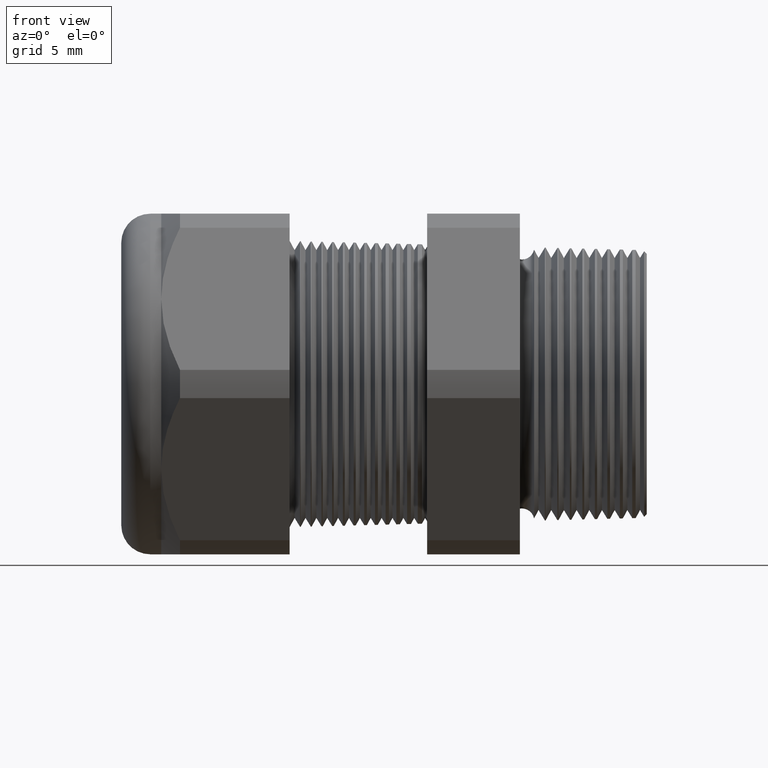
[diagram: clean part render]
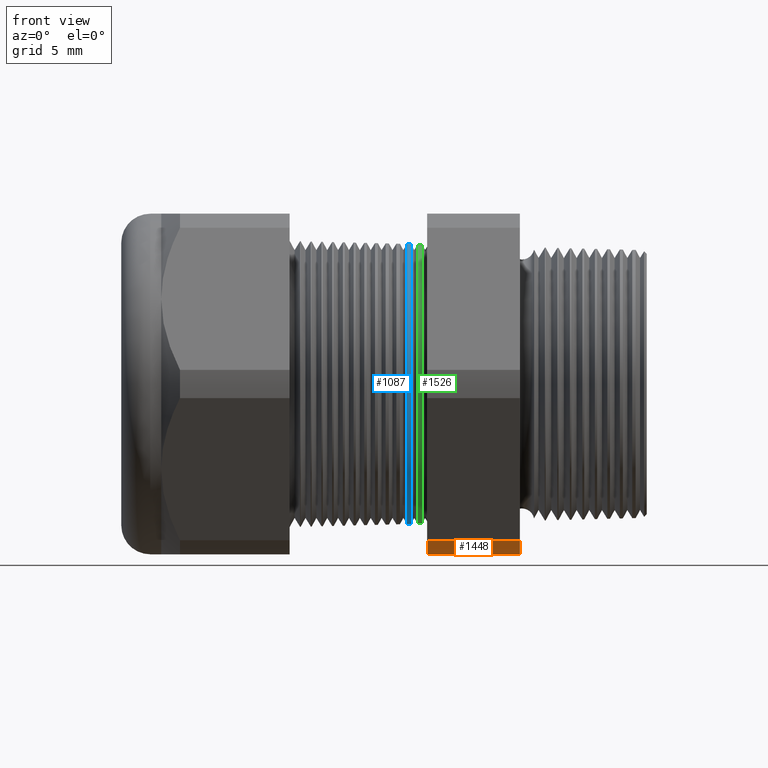
[diagram: same view with three faces highlighted in distinct colors, each labeled with its STEP entity id]
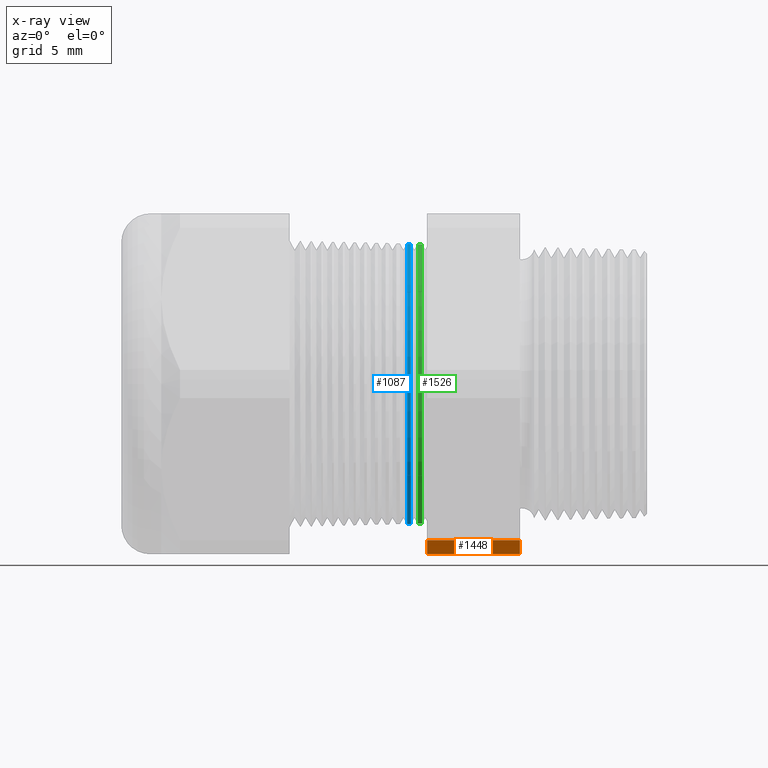
[diagram: x-ray of the same camera — body ghosted, the three highlighted faces saturated]
A machine part, front view with three faces highlighted in distinct colors.
The next image is the same camera in x-ray (body ghosted, the three faces saturated) — at least one of them is partly hidden behind the body in this view.
Their STEP definitions:

[orange] entity #1448 — the highlighted cylindrical surface (partial cylindrical patch) has radius 13.2512 mm, axis along (-1, 0, 0).
#1303 = EDGE_CURVE ( 'NONE', #1382, #1304, #4426, .T. ) ;
#1304 = VERTEX_POINT ( 'NONE', #4421 ) ;
#1382 = VERTEX_POINT ( 'NONE', #4538 ) ;
#1388 = EDGE_CURVE ( 'NONE', #1304, #1389, #3544, .T. ) ;
#1389 = VERTEX_POINT ( 'NONE', #4598 ) ;
#1392 = EDGE_LOOP ( 'NONE', ( #1449, #1450, #1451, #1454 ) ) ;
#1448 = ADVANCED_FACE ( 'NONE', ( #4686 ), #4685, .T. ) ;
#1449 = ORIENTED_EDGE ( 'NONE', *, *, #1388, .F. ) ;
#1450 = ORIENTED_EDGE ( 'NONE', *, *, #1303, .F. ) ;
#1451 = ORIENTED_EDGE ( 'NONE', *, *, #1452, .T. ) ;
#1452 = EDGE_CURVE ( 'NONE', #1382, #1453, #4684, .T. ) ;
#1453 = VERTEX_POINT ( 'NONE', #4676 ) ;
#1454 = ORIENTED_EDGE ( 'NONE', *, *, #1455, .F. ) ;
#1455 = EDGE_CURVE ( 'NONE', #1389, #1453, #4675, .T. ) ;
#3544 = LINE ( 'NONE', #3797, #3796 ) ;
#3796 = VECTOR ( 'NONE', #4292, 39.37007874015748100 ) ;
#3797 = CARTESIAN_POINT ( 'NONE',  ( 0.04000000000000011900, -0.2264307620443830900, -0.4700000000000000300 ) ) ;
#4292 = DIRECTION ( 'NONE',  ( -1.000000000000000000, 0.0000000000000000000, 0.0000000000000000000 ) ) ;
#4421 = CARTESIAN_POINT ( 'NONE',  ( -0.3100000000000000000, -0.2264307620443830900, -0.4700000000000000300 ) ) ;
#4422 = DIRECTION ( 'NONE',  ( 0.0000000000000000000, 0.0000000000000000000, -1.000000000000000000 ) ) ;
#4423 = DIRECTION ( 'NONE',  ( 1.000000000000000000, 0.0000000000000000000, 0.0000000000000000000 ) ) ;
#4424 = CARTESIAN_POINT ( 'NONE',  ( -0.3100000000000000000, 0.0000000000000000000, 0.0000000000000000000 ) ) ;
#4425 = AXIS2_PLACEMENT_3D ( 'NONE', #4424, #4423, #4422 ) ;
#4426 = CIRCLE ( 'NONE', #4425, 0.5217000000000000500 ) ;
#4538 = CARTESIAN_POINT ( 'NONE',  ( -0.3100000000000000000, -0.2938165587564942600, -0.4310947921287053300 ) ) ;
#4598 = CARTESIAN_POINT ( 'NONE',  ( -0.5659055118110235500, -0.2264307620443830900, -0.4700000000000000300 ) ) ;
#4671 = DIRECTION ( 'NONE',  ( 0.0000000000000000000, 0.0000000000000000000, 1.000000000000000000 ) ) ;
#4672 = DIRECTION ( 'NONE',  ( -1.000000000000000000, 0.0000000000000000000, 0.0000000000000000000 ) ) ;
#4673 = CARTESIAN_POINT ( 'NONE',  ( -0.5659055118110235500, 0.0000000000000000000, 0.0000000000000000000 ) ) ;
#4674 = AXIS2_PLACEMENT_3D ( 'NONE', #4673, #4672, #4671 ) ;
#4675 = CIRCLE ( 'NONE', #4674, 0.5217000000000000500 ) ;
#4676 = CARTESIAN_POINT ( 'NONE',  ( -0.5659055118110235500, -0.2938165587564942600, -0.4310947921287053300 ) ) ;
#4677 = DIRECTION ( 'NONE',  ( -1.000000000000000000, 0.0000000000000000000, 0.0000000000000000000 ) ) ;
#4678 = VECTOR ( 'NONE', #4677, 39.37007874015748100 ) ;
#4679 = CARTESIAN_POINT ( 'NONE',  ( 0.04000000000000011900, -0.2938165587564942600, -0.4310947921287053300 ) ) ;
#4680 = DIRECTION ( 'NONE',  ( 0.0000000000000000000, 0.0000000000000000000, 1.000000000000000000 ) ) ;
#4681 = DIRECTION ( 'NONE',  ( -1.000000000000000000, 0.0000000000000000000, 0.0000000000000000000 ) ) ;
#4682 = CARTESIAN_POINT ( 'NONE',  ( 0.04000000000000011900, 0.0000000000000000000, 0.0000000000000000000 ) ) ;
#4683 = AXIS2_PLACEMENT_3D ( 'NONE', #4682, #4681, #4680 ) ;
#4684 = LINE ( 'NONE', #4679, #4678 ) ;
#4685 = CYLINDRICAL_SURFACE ( 'NONE', #4683, 0.5217000000000000500 ) ;
#4686 = FACE_OUTER_BOUND ( 'NONE', #1392, .T. ) ;

[blue] entity #1087 — the highlighted conical surface has half-angle 1.5 deg.
#18 = EDGE_CURVE ( 'NONE', #855, #1015, #1942, .T. ) ;
#29 = EDGE_CURVE ( 'NONE', #934, #1018, #1924, .T. ) ;
#855 = VERTEX_POINT ( 'NONE', #3498 ) ;
#934 = VERTEX_POINT ( 'NONE', #3661 ) ;
#1015 = VERTEX_POINT ( 'NONE', #3820 ) ;
#1018 = VERTEX_POINT ( 'NONE', #3814 ) ;
#1068 = ORIENTED_EDGE ( 'NONE', *, *, #1069, .F. ) ;
#1069 = EDGE_CURVE ( 'NONE', #1018, #1015, #3904, .T. ) ;
#1087 = ADVANCED_FACE ( 'NONE', ( #3930 ), #3929, .T. ) ;
#1088 = EDGE_LOOP ( 'NONE', ( #1089, #1090, #1092, #1068 ) ) ;
#1089 = ORIENTED_EDGE ( 'NONE', *, *, #29, .F. ) ;
#1090 = ORIENTED_EDGE ( 'NONE', *, *, #1091, .F. ) ;
#1091 = EDGE_CURVE ( 'NONE', #855, #934, #3923, .T. ) ;
#1092 = ORIENTED_EDGE ( 'NONE', *, *, #18, .T. ) ;
#1917 = DIRECTION ( 'NONE',  ( -0.9996573249755573700, 3.205751595667397300E-018, -0.02617694830786612700 ) ) ;
#1918 = CARTESIAN_POINT ( 'NONE',  ( -0.5659055118110234400, 4.715646042257034900E-017, -0.3850617211052404000 ) ) ;
#1924 = LINE ( 'NONE', #1918, #1979 ) ;
#1934 = DIRECTION ( 'NONE',  ( -0.9996573249755573700, 0.0000000000000000000, 0.02617694830786612700 ) ) ;
#1935 = VECTOR ( 'NONE', #1934, 39.37007874015748100 ) ;
#1936 = CARTESIAN_POINT ( 'NONE',  ( -0.5659055118110234400, 0.0000000000000000000, 0.3850617211052404000 ) ) ;
#1942 = LINE ( 'NONE', #1936, #1935 ) ;
#1979 = VECTOR ( 'NONE', #1917, 39.37007874015748100 ) ;
#3498 = CARTESIAN_POINT ( 'NONE',  ( -0.6106735281914870100, 0.0000000000000000000, 0.3862340128709869100 ) ) ;
#3661 = CARTESIAN_POINT ( 'NONE',  ( -0.6106735281914870100, 4.731708507153197700E-017, -0.3862340128709869100 ) ) ;
#3814 = CARTESIAN_POINT ( 'NONE',  ( -0.6213134461331300000, 4.733414538463479300E-017, -0.3865126289277093800 ) ) ;
#3820 = CARTESIAN_POINT ( 'NONE',  ( -0.6213134461331300000, 0.0000000000000000000, 0.3865126289277093800 ) ) ;
#3900 = DIRECTION ( 'NONE',  ( 0.0000000000000000000, 0.0000000000000000000, -1.000000000000000000 ) ) ;
#3901 = DIRECTION ( 'NONE',  ( -1.000000000000000000, 0.0000000000000000000, 0.0000000000000000000 ) ) ;
#3902 = CARTESIAN_POINT ( 'NONE',  ( -0.6213134461331300000, 0.0000000000000000000, 0.0000000000000000000 ) ) ;
#3903 = AXIS2_PLACEMENT_3D ( 'NONE', #3902, #3901, #3900 ) ;
#3904 = CIRCLE ( 'NONE', #3903, 0.3865126289277093800 ) ;
#3920 = DIRECTION ( 'NONE',  ( 0.0000000000000000000, 0.0000000000000000000, 1.000000000000000000 ) ) ;
#3921 = DIRECTION ( 'NONE',  ( 1.000000000000000000, 0.0000000000000000000, 0.0000000000000000000 ) ) ;
#3922 = AXIS2_PLACEMENT_3D ( 'NONE', #3928, #3921, #3920 ) ;
#3923 = CIRCLE ( 'NONE', #3922, 0.3862340128709869100 ) ;
#3924 = DIRECTION ( 'NONE',  ( 0.0000000000000000000, 0.0000000000000000000, 1.000000000000000000 ) ) ;
#3925 = DIRECTION ( 'NONE',  ( -1.000000000000000000, 0.0000000000000000000, 0.0000000000000000000 ) ) ;
#3926 = CARTESIAN_POINT ( 'NONE',  ( -0.5659055118110234400, 0.0000000000000000000, 0.0000000000000000000 ) ) ;
#3927 = AXIS2_PLACEMENT_3D ( 'NONE', #3926, #3925, #3924 ) ;
#3928 = CARTESIAN_POINT ( 'NONE',  ( -0.6106735281914870100, 0.0000000000000000000, 0.0000000000000000000 ) ) ;
#3929 = CONICAL_SURFACE ( 'NONE', #3927, 0.3850617211052404000, 0.02617993877990791600 ) ;
#3930 = FACE_OUTER_BOUND ( 'NONE', #1088, .T. ) ;

[green] entity #1526 — the highlighted conical surface has half-angle 1.5 deg.
#202 = EDGE_CURVE ( 'NONE', #967, #952, #2262, .T. ) ;
#279 = EDGE_CURVE ( 'NONE', #939, #950, #2377, .T. ) ;
#939 = VERTEX_POINT ( 'NONE', #3655 ) ;
#950 = VERTEX_POINT ( 'NONE', #3694 ) ;
#952 = VERTEX_POINT ( 'NONE', #3693 ) ;
#967 = VERTEX_POINT ( 'NONE', #3726 ) ;
#1507 = ORIENTED_EDGE ( 'NONE', *, *, #279, .T. ) ;
#1508 = ORIENTED_EDGE ( 'NONE', *, *, #1509, .F. ) ;
#1509 = EDGE_CURVE ( 'NONE', #952, #950, #4764, .T. ) ;
#1526 = ADVANCED_FACE ( 'NONE', ( #4811 ), #4810, .T. ) ;
#1527 = EDGE_LOOP ( 'NONE', ( #1528, #1529, #1507, #1508 ) ) ;
#1528 = ORIENTED_EDGE ( 'NONE', *, *, #202, .F. ) ;
#1529 = ORIENTED_EDGE ( 'NONE', *, *, #1530, .F. ) ;
#1530 = EDGE_CURVE ( 'NONE', #939, #967, #4809, .T. ) ;
#2259 = DIRECTION ( 'NONE',  ( -0.9996573249755573700, 3.205751595667397300E-018, -0.02617694830786612700 ) ) ;
#2260 = VECTOR ( 'NONE', #2259, 39.37007874015748100 ) ;
#2261 = CARTESIAN_POINT ( 'NONE',  ( -0.5659055118110234400, 4.715646042257034900E-017, -0.3850617211052404000 ) ) ;
#2262 = LINE ( 'NONE', #2261, #2260 ) ;
#2374 = DIRECTION ( 'NONE',  ( -0.9996573249755573700, 0.0000000000000000000, 0.02617694830786612700 ) ) ;
#2375 = VECTOR ( 'NONE', #2374, 39.37007874015748100 ) ;
#2376 = CARTESIAN_POINT ( 'NONE',  ( -0.5659055118110234400, 0.0000000000000000000, 0.3850617211052404000 ) ) ;
#2377 = LINE ( 'NONE', #2376, #2375 ) ;
#3655 = CARTESIAN_POINT ( 'NONE',  ( -0.5802408424937912600, 0.0000000000000000000, 0.3854371049501675900 ) ) ;
#3693 = CARTESIAN_POINT ( 'NONE',  ( -0.5917872457881870900, 4.723945927419978800E-017, -0.3857394581612408300 ) ) ;
#3694 = CARTESIAN_POINT ( 'NONE',  ( -0.5917872457881870900, 0.0000000000000000000, 0.3857394581612408300 ) ) ;
#3726 = CARTESIAN_POINT ( 'NONE',  ( -0.5802408424937912600, 4.722094547959215600E-017, -0.3854371049501675900 ) ) ;
#4760 = DIRECTION ( 'NONE',  ( 0.0000000000000000000, 0.0000000000000000000, -1.000000000000000000 ) ) ;
#4761 = DIRECTION ( 'NONE',  ( -1.000000000000000000, 0.0000000000000000000, 0.0000000000000000000 ) ) ;
#4762 = CARTESIAN_POINT ( 'NONE',  ( -0.5917872457881870900, 0.0000000000000000000, 0.0000000000000000000 ) ) ;
#4763 = AXIS2_PLACEMENT_3D ( 'NONE', #4762, #4761, #4760 ) ;
#4764 = CIRCLE ( 'NONE', #4763, 0.3857394581612408300 ) ;
#4801 = DIRECTION ( 'NONE',  ( 0.0000000000000000000, 0.0000000000000000000, 1.000000000000000000 ) ) ;
#4802 = DIRECTION ( 'NONE',  ( 1.000000000000000000, 0.0000000000000000000, 0.0000000000000000000 ) ) ;
#4803 = CARTESIAN_POINT ( 'NONE',  ( -0.5802408424937912600, 0.0000000000000000000, 0.0000000000000000000 ) ) ;
#4804 = AXIS2_PLACEMENT_3D ( 'NONE', #4803, #4802, #4801 ) ;
#4805 = DIRECTION ( 'NONE',  ( 0.0000000000000000000, 0.0000000000000000000, 1.000000000000000000 ) ) ;
#4806 = DIRECTION ( 'NONE',  ( -1.000000000000000000, 0.0000000000000000000, 0.0000000000000000000 ) ) ;
#4807 = CARTESIAN_POINT ( 'NONE',  ( -0.5659055118110234400, 0.0000000000000000000, 0.0000000000000000000 ) ) ;
#4808 = AXIS2_PLACEMENT_3D ( 'NONE', #4807, #4806, #4805 ) ;
#4809 = CIRCLE ( 'NONE', #4804, 0.3854371049501675900 ) ;
#4810 = CONICAL_SURFACE ( 'NONE', #4808, 0.3850617211052404000, 0.02617993877990791600 ) ;
#4811 = FACE_OUTER_BOUND ( 'NONE', #1527, .T. ) ;